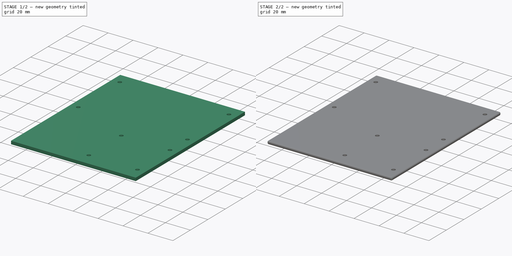
[diagram: build sequence overview — one tinted view per stage of 2, left to right]
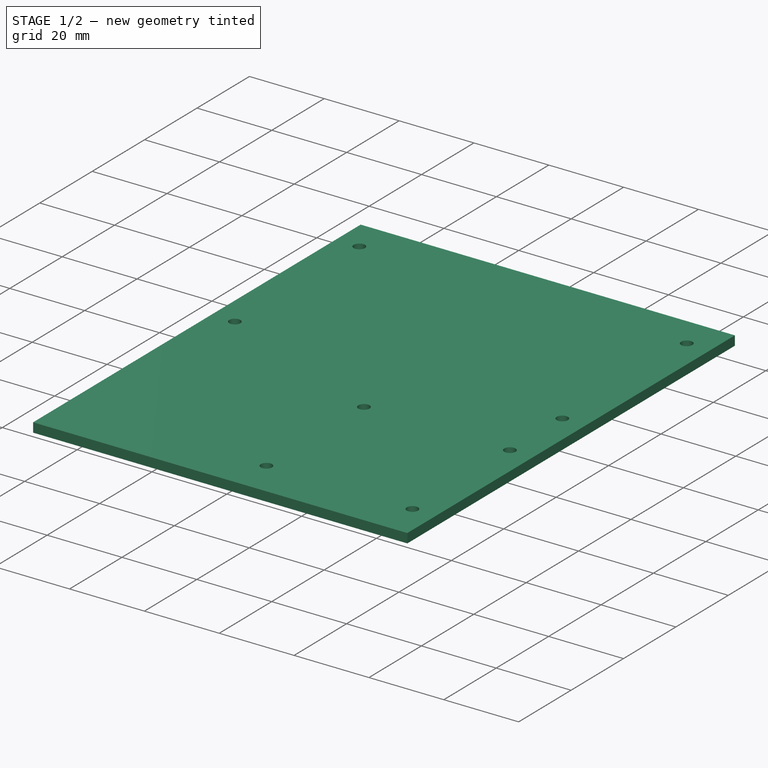
[diagram: stage 1 of 2 — iso view after this stage's code; geometry added in this stage tinted green]
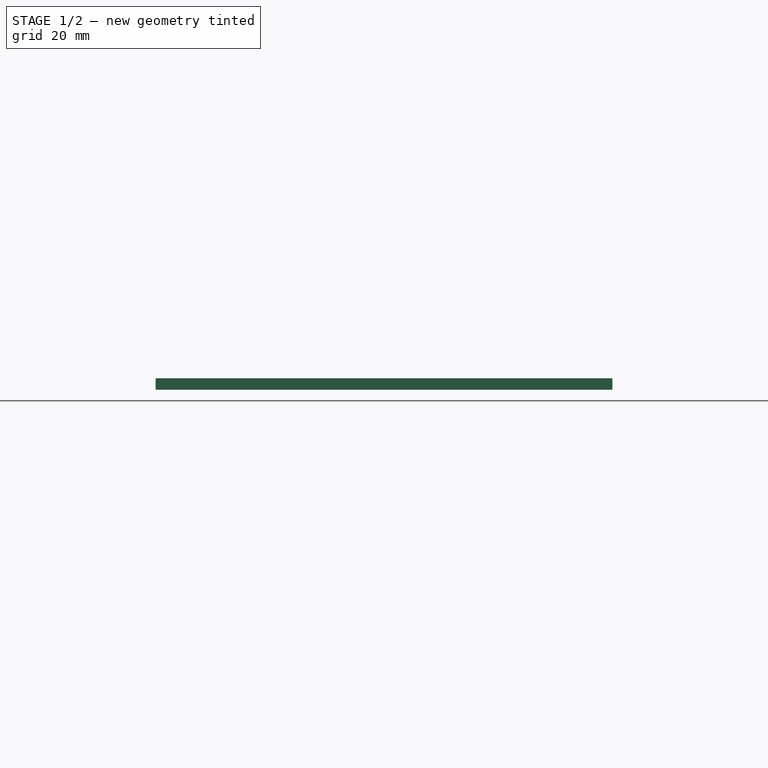
[diagram: stage 1 of 2 — front view after this stage's code; geometry added in this stage tinted green]
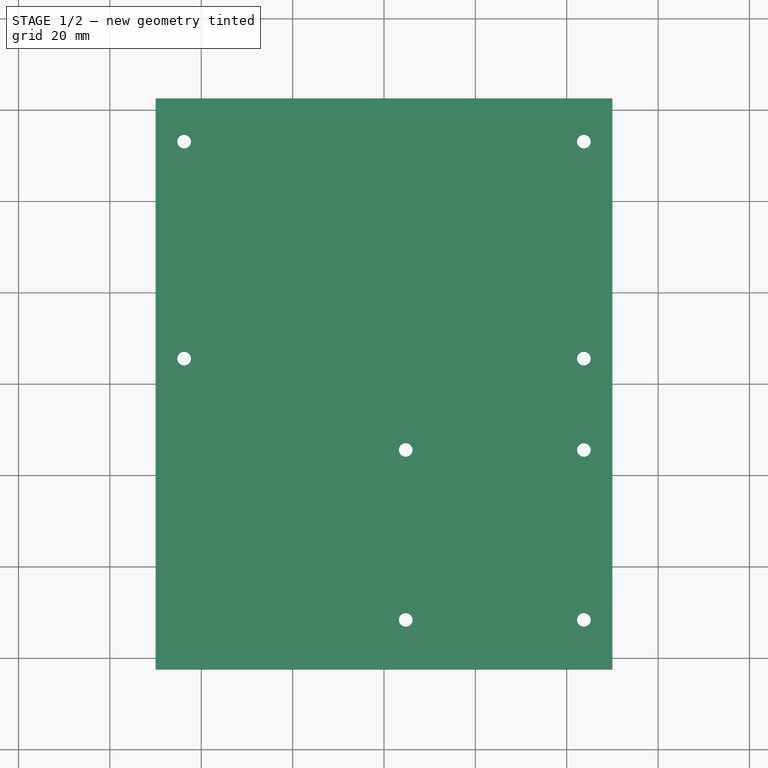
[diagram: stage 1 of 2 — top view after this stage's code; geometry added in this stage tinted green]
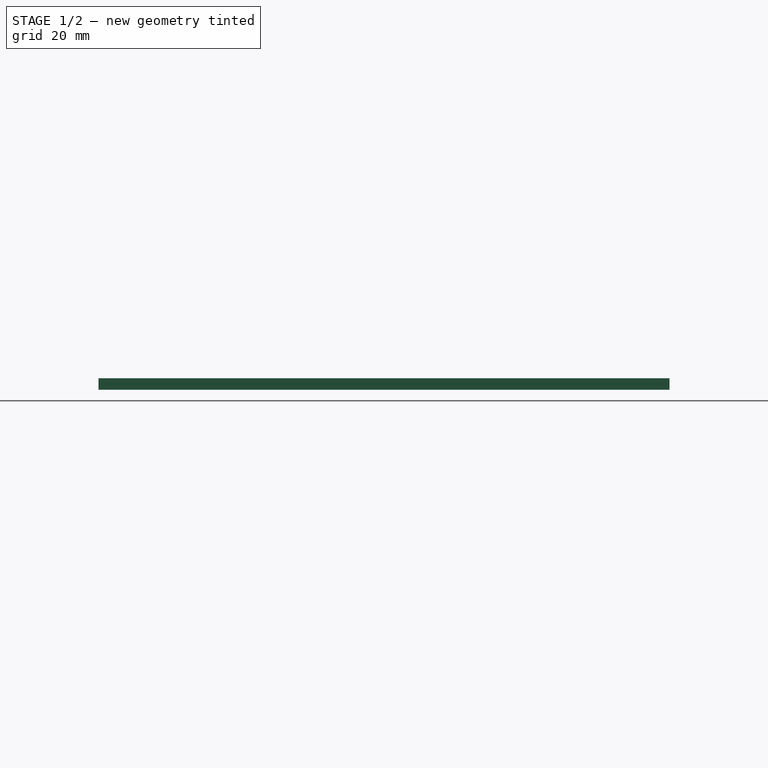
[diagram: stage 1 of 2 — right view after this stage's code; geometry added in this stage tinted green]
FCSTD DOCUMENT  (FreeCAD 0.21R33668 +26 (Git))
Label: bed
License: All rights reserved
LicenseURL: https://en.wikipedia.org/wiki/All_rights_reserved
objects: Sketcher::SketchObject×1, PartDesign::Pad×1, PartDesign::Fillet×1, PartDesign::Body×1
note: 6 computed .brp shape members not serialized (recipe doc carries the construction recipe); baked Part::Feature solids carry a one-line shape summary decoded from their .brp

FEATURE [Sketcher::SketchObject] Sketch
  FullyConstrained = false
  MapMode = 5
  Support = -> [XY_Plane]
  sketch-geometry (20):
    g0: LineSegment StartX=-50 StartY=62.5 StartZ=0 EndX=50 EndY=62.5 EndZ=0
    g1: LineSegment StartX=50 StartY=62.5 StartZ=0 EndX=50 EndY=-62.5 EndZ=0
    g2: LineSegment StartX=50 StartY=-62.5 StartZ=0 EndX=-50 EndY=-62.5 EndZ=0
    g3: LineSegment StartX=-50 StartY=-62.5 StartZ=0 EndX=-50 EndY=62.5 EndZ=0
    g4: LineSegment StartX=-43.75 StartY=53.0594 StartZ=0 EndX=43.75 EndY=53.0594 EndZ=0
    g5: LineSegment StartX=43.75 StartY=53.0594 StartZ=0 EndX=43.75 EndY=5.55944 EndZ=0
    g6: LineSegment StartX=43.75 StartY=5.55944 StartZ=0 EndX=-43.75 EndY=5.55944 EndZ=0
    g7: LineSegment StartX=-43.75 StartY=5.55944 StartZ=0 EndX=-43.75 EndY=53.0594 EndZ=0
    g8: LineSegment StartX=4.75 StartY=-14.4406 StartZ=0 EndX=43.75 EndY=-14.4406 EndZ=0
    g9: LineSegment StartX=43.75 StartY=-14.4406 StartZ=0 EndX=43.75 EndY=-51.6406 EndZ=0
    g10: LineSegment StartX=43.75 StartY=-51.6406 StartZ=0 EndX=4.75 EndY=-51.6406 EndZ=0
    g11: LineSegment StartX=4.75 StartY=-51.6406 StartZ=0 EndX=4.75 EndY=-14.4406 EndZ=0
    g12: Circle CenterX=-43.75 CenterY=53.0594 CenterZ=0 NormalX=0 NormalY=0 NormalZ=1 AngleXU=0 Radius=1.5
    g13: Circle CenterX=43.75 CenterY=53.0594 CenterZ=0 NormalX=0 NormalY=0 NormalZ=1 AngleXU=0 Radius=1.5
    g14: Circle CenterX=43.75 CenterY=5.55944 CenterZ=0 NormalX=0 NormalY=0 NormalZ=1 AngleXU=0 Radius=1.5
    g15: Circle CenterX=43.75 CenterY=-14.4406 CenterZ=0 NormalX=0 NormalY=0 NormalZ=1 AngleXU=0 Radius=1.5
    g16: Circle CenterX=4.75 CenterY=-14.4406 CenterZ=0 NormalX=0 NormalY=0 NormalZ=1 AngleXU=0 Radius=1.5
    g17: Circle CenterX=43.75 CenterY=-51.6406 CenterZ=0 NormalX=0 NormalY=0 NormalZ=1 AngleXU=0 Radius=1.5
    g18: Circle CenterX=-43.75 CenterY=5.55944 CenterZ=0 NormalX=0 NormalY=0 NormalZ=1 AngleXU=0 Radius=1.5
    g19: Circle CenterX=4.75 CenterY=-51.6406 CenterZ=0 NormalX=0 NormalY=0 NormalZ=1 AngleXU=0 Radius=1.5
  constraints (49):
    c: Coincident(g0,g1)
    c: Coincident(g1,g2)
    c: Coincident(g2,g3)
    c: Coincident(g3,g0)
    c: Horizontal(g0)
    c: Horizontal(g2)
    c: Vertical(g1)
    c: Vertical(g3)
    c: Symmetric(g0,g1,g-1)
    c: DistanceX(g0,g0) = 100
    c: DistanceY(g3,g3) = 125
    c: Coincident(g4,g5)
    c: Coincident(g5,g6)
    c: Coincident(g6,g7)
    c: Coincident(g7,g4)
    c: Horizontal(g6)
    c: Vertical(g5)
    c: Vertical(g7)
    c: DistanceX(g4,g4) = 87.5
    c: DistanceY(g7,g7) = 47.5
    c: Coincident(g8,g9)
    c: Coincident(g9,g10)
    c: Coincident(g10,g11)
    c: Coincident(g11,g8)
    c: Horizontal(g8)
    c: Horizontal(g10)
    c: Vertical(g9)
    c: Vertical(g11)
    c: DistanceX(g10,g10) = 39
    c: DistanceY(g11,g11) = 37.2
    c: Symmetric(g4,g4,g-2)
    c: PointOnObject(g8,g5)
    c: Coincident(g12,g4)
    c: Coincident(g13,g4)
    c: Coincident(g14,g5)
    c: Coincident(g15,g8)
    c: Coincident(g16,g8)
    c: Coincident(g17,g9)
    c: Coincident(g18,g6)
    c: Coincident(g19,g10)
    c: Equal(g15,g17)
    c: Equal(g17,g19)
    c: Equal(g19,g16)
    c: Equal(g16,g18)
    c: Equal(g18,g14)
    c: Equal(g14,g13)
    c: Equal(g13,g12)
    c: Diameter(g13) = 3
    c: DistanceY(g15,g14) = 20
FEATURE [PartDesign::Pad] Pad
  Direction = (0,0,1)
  Length = 2.5
  Length2 = 10
  Profile = -> Sketch
  ReferenceAxis = -> Sketch [N_Axis]
  Type = 0
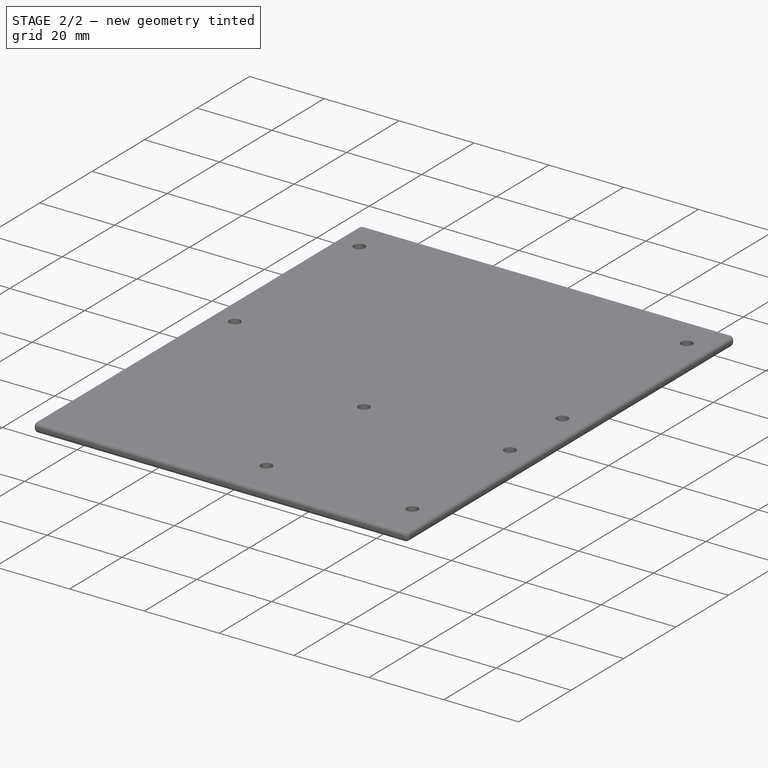
[diagram: stage 2 of 2 — iso view after this stage's code; geometry added in this stage tinted green]
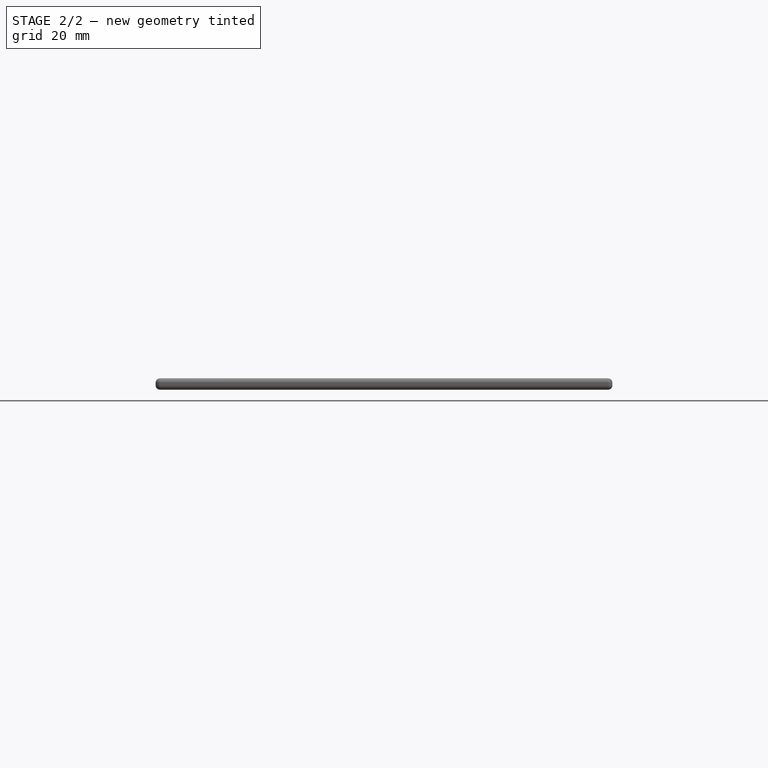
[diagram: stage 2 of 2 — front view after this stage's code; geometry added in this stage tinted green]
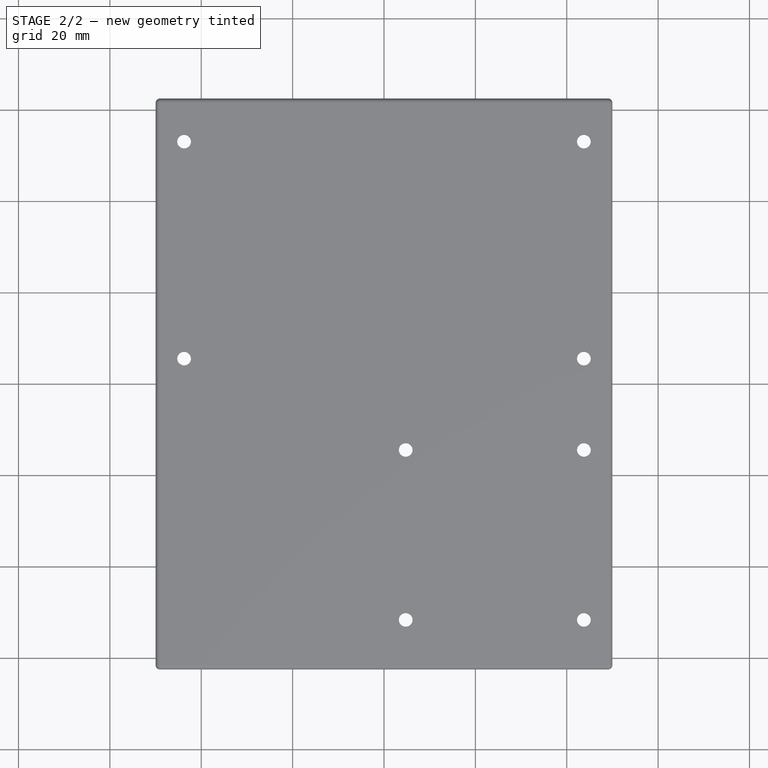
[diagram: stage 2 of 2 — top view after this stage's code; geometry added in this stage tinted green]
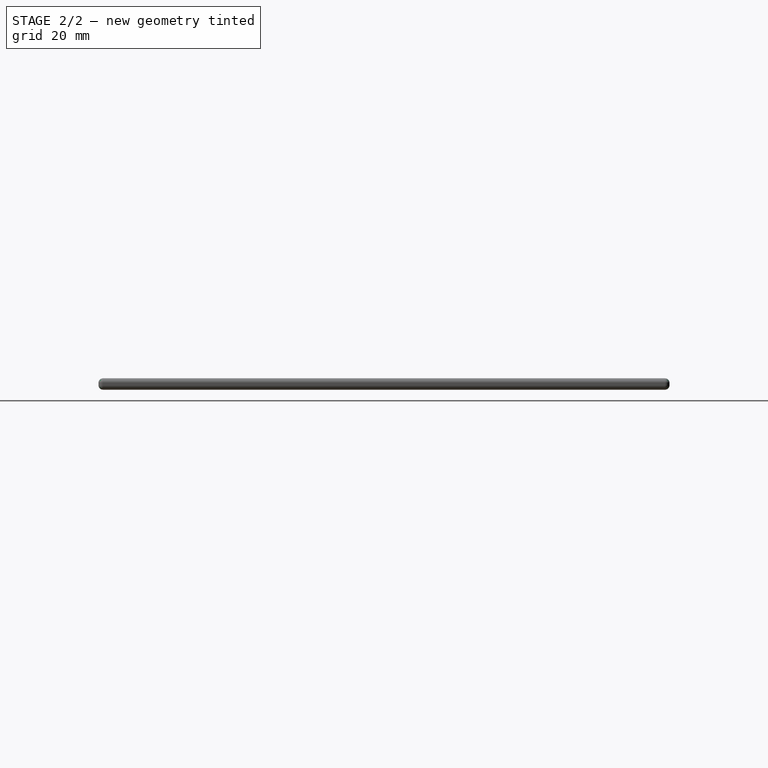
[diagram: stage 2 of 2 — right view after this stage's code; geometry added in this stage tinted green]
FEATURE [PartDesign::Fillet] Fillet
  Base = -> Pad [Face2,Face1,Face4,Face3]
  BaseFeature = -> Pad
  Radius = 1
  SupportTransform = false
  UseAllEdges = false
FEATURE [PartDesign::Body] Body
  Group = -> [Sketch,Pad,Fillet]
  Origin = -> Origin
  Tip = -> Fillet
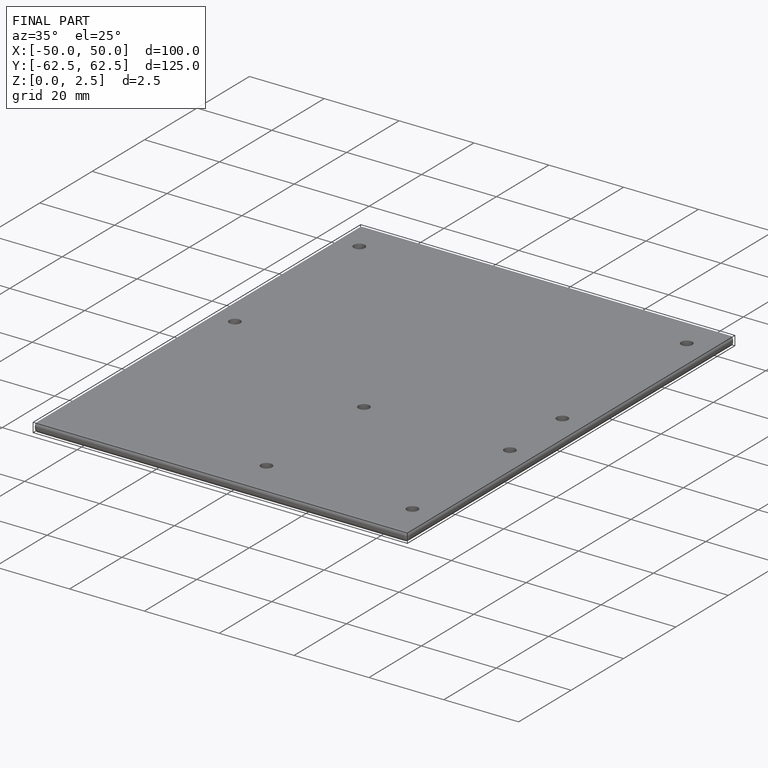
[diagram: finished part — iso view with bounding-box wireframe]
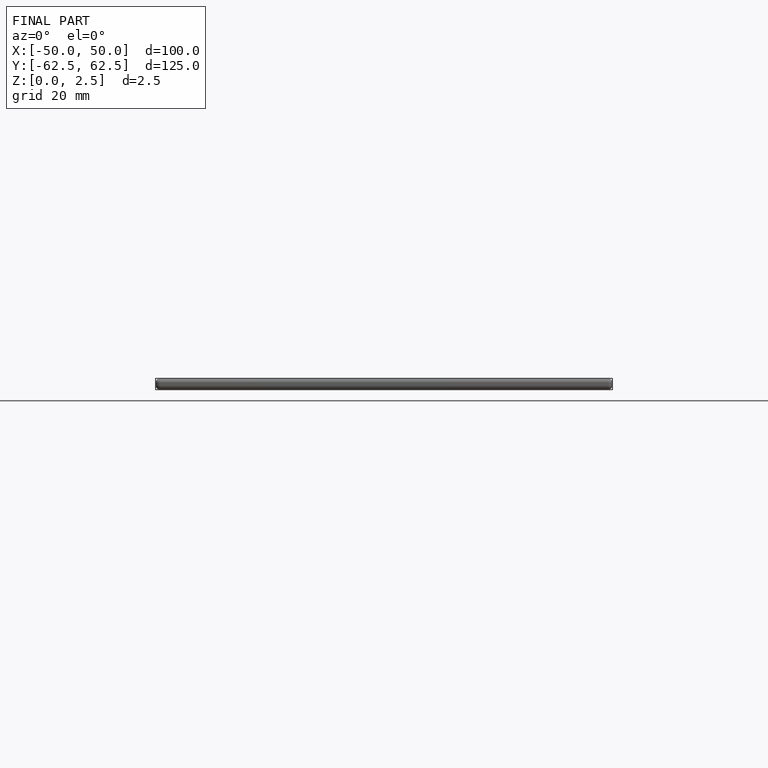
[diagram: finished part — front view with bounding-box wireframe]
